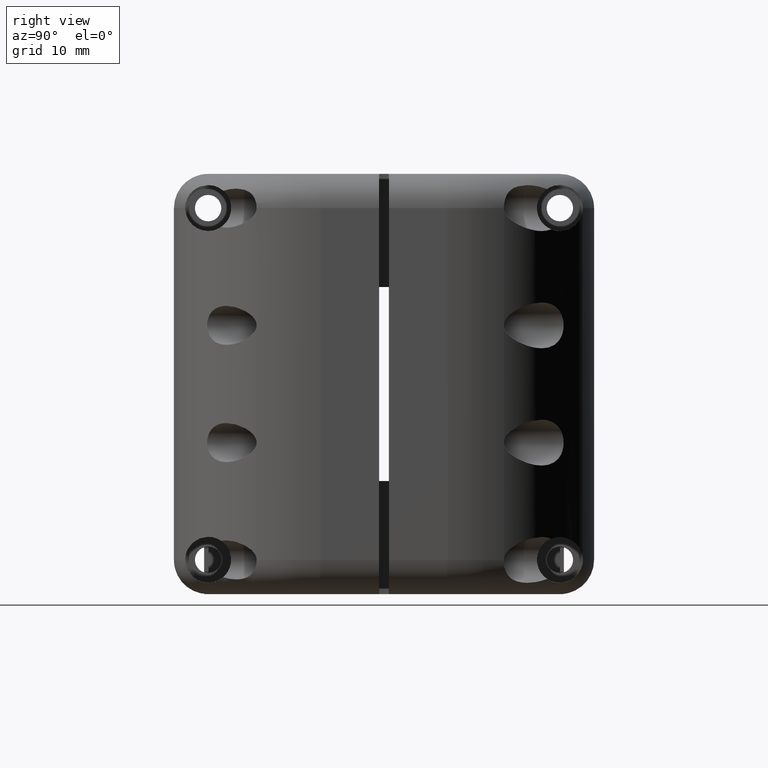
[diagram: clean part render]
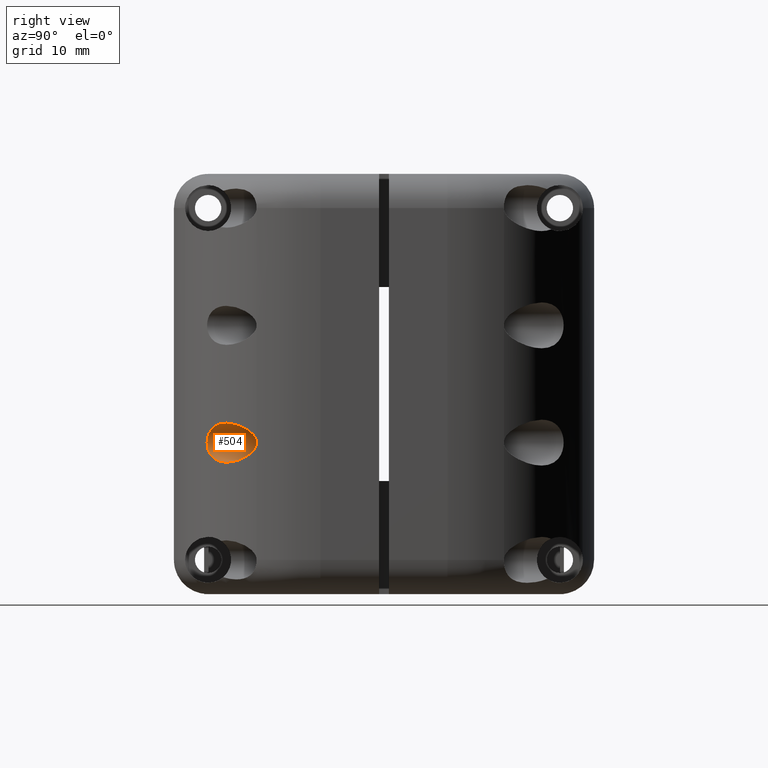
[diagram: same view with one face highlighted and labeled with its STEP entity id]
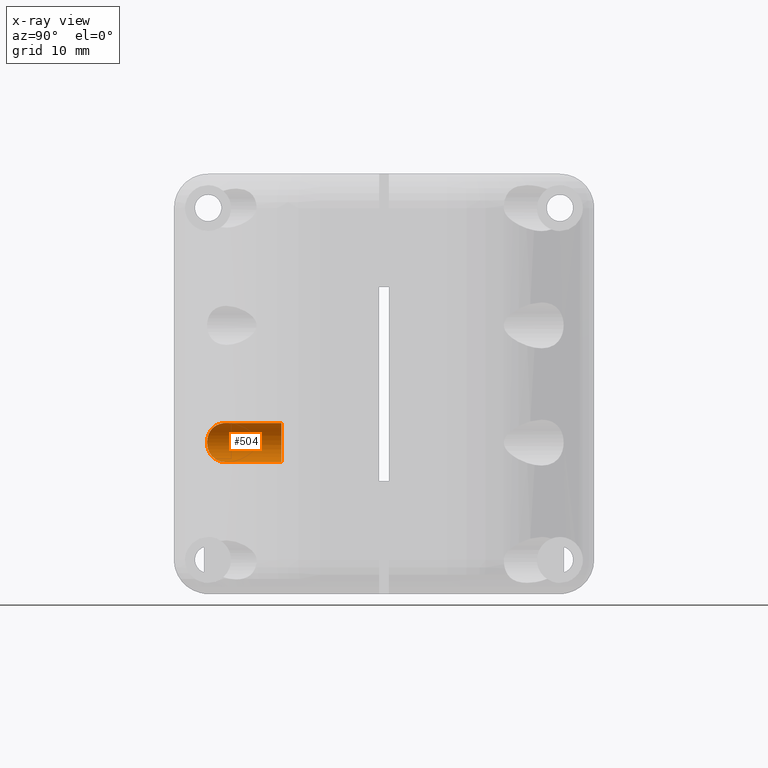
[diagram: x-ray of the same camera — body ghosted, the highlighted face saturated]
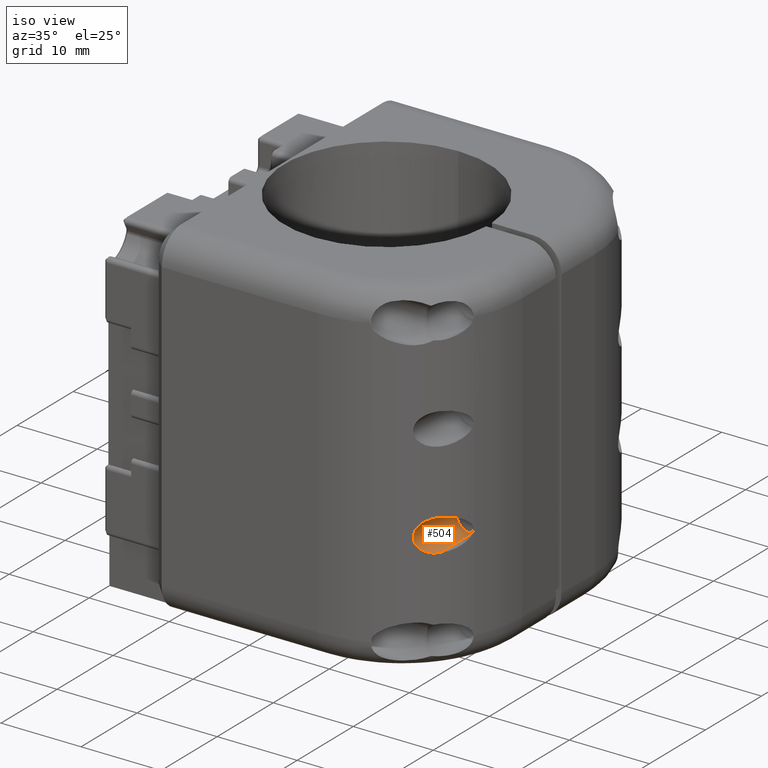
[diagram: same view with one face highlighted and labeled with its STEP entity id]
A machine part, right view. The second image highlights one B-rep face of the part: STEP entity #504.
The next image is the same camera in x-ray: the body ghosted, the highlighted face saturated — about 0% of this face is hidden behind the body in this view.
A second angle (iso view) of the same face is appended — the face is thin or edge-on in the first view.
In plain terms, the highlighted cylindrical surface (edge-blend (fillet) strip) has radius 2 mm, axis along (0, 1, 0).
Its self-contained STEP definition (entity closure, byte-faithful):
#254=CYLINDRICAL_SURFACE('',#8473,2.);
#504=ADVANCED_FACE('',(#892),#254,.F.);
#892=FACE_OUTER_BOUND('',#1312,.F.);
#1312=EDGE_LOOP('',(#2691,#2692,#2693,#2694));
#2691=ORIENTED_EDGE('',*,*,#5486,.F.);
#2692=ORIENTED_EDGE('',*,*,#5490,.F.);
#2693=ORIENTED_EDGE('',*,*,#5487,.T.);
#2694=ORIENTED_EDGE('',*,*,#5017,.T.);
#4267=B_SPLINE_CURVE_WITH_KNOTS('',3,(#11977,#11978,#11979,#11980,#11981,
#11982,#11983,#11984,#11985,#11986,#11987,#11988,#11989,#11990,#11991,#11992,
#11993,#11994,#11995,#11996,#11997),.UNSPECIFIED.,.F.,.F.,(4,1,1,1,1,1,1,
1,1,1,1,1,1,1,1,1,1,1,4),(0.,0.0761269899847815,0.128273079170118,0.188720013484414,
0.246301950433155,0.301097779144921,0.353358480565255,0.403513585772715,
0.452153345328427,0.5,0.547846654671572,0.596486414227285,0.646641519434745,
0.698902220855079,0.753698049566845,0.811279986515586,0.871726920829882,
0.923873010015219,1.),.UNSPECIFIED.);
#4640=CIRCLE('',#8227,2.);
#5017=EDGE_CURVE('',#7535,#7534,#4267,.T.);
#5486=EDGE_CURVE('',#7255,#7534,#6217,.T.);
#5487=EDGE_CURVE('',#7254,#7535,#6218,.T.);
#5490=EDGE_CURVE('',#7254,#7255,#4640,.T.);
#6217=LINE('',#13053,#6899);
#6218=LINE('',#13054,#6900);
#6899=VECTOR('',#9748,5.6306889246988);
#6900=VECTOR('',#9749,5.63068892469882);
#7254=VERTEX_POINT('',#10979);
#7255=VERTEX_POINT('',#10980);
#7534=VERTEX_POINT('',#11259);
#7535=VERTEX_POINT('',#11260);
#8227=AXIS2_PLACEMENT_3D('',#13057,#9752,#9753);
#8473=AXIS2_PLACEMENT_3D('',#13567,#10496,#10497);
#9748=DIRECTION('',(0.,-1.,0.));
#9749=DIRECTION('',(0.,-1.,0.));
#9752=DIRECTION('',(0.,1.,0.));
#9753=DIRECTION('',(0.,0.,-1.));
#10496=DIRECTION('',(0.,1.,0.));
#10497=DIRECTION('',(0.,0.,-1.));
#10979=CARTESIAN_POINT('',(91.1649964450381,-10.499992332566,-8.00000002188403));
#10980=CARTESIAN_POINT('',(91.1649964450381,-10.499992332566,-4.00000002188403));
#11259=CARTESIAN_POINT('',(91.1649958473061,-16.130681321269,-4.00000002188567));
#11260=CARTESIAN_POINT('',(91.1649958473061,-16.130681321269,-8.00000002188236));
#11977=CARTESIAN_POINT('',(91.1649954680522,-16.1306814493035,-8.00000002189654));
#11978=CARTESIAN_POINT('',(91.0402075509005,-16.2797124476108,-7.99997642499238));
#11979=CARTESIAN_POINT('',(90.8249698325959,-16.5267218200177,-7.9804231424943));
#11980=CARTESIAN_POINT('',(90.5012581487732,-16.8747118699709,-7.8949155850473));
#11981=CARTESIAN_POINT('',(90.2088216706473,-17.1718057193843,-7.76769939603921));
#11982=CARTESIAN_POINT('',(89.9199696395625,-17.4490672482924,-7.57803384509887));
#11983=CARTESIAN_POINT('',(89.6636499400971,-17.6830338823065,-7.33710320715974));
#11984=CARTESIAN_POINT('',(89.4500003801282,-17.8698615670054,-7.04971926170359));
#11985=CARTESIAN_POINT('',(89.288634903403,-18.0062997373945,-6.72363190637063));
#11986=CARTESIAN_POINT('',(89.1879003215265,-18.0894987931775,-6.36930512408147));
#11987=CARTESIAN_POINT('',(89.1536714024166,-18.1174139270488,-6.00000002188402));
#11988=CARTESIAN_POINT('',(89.1879003215265,-18.0894987931775,-5.63069491968657));
#11989=CARTESIAN_POINT('',(89.288634903403,-18.0062997373945,-5.2763681373974));
#11990=CARTESIAN_POINT('',(89.4500003801282,-17.8698615670054,-4.95028078206444));
#11991=CARTESIAN_POINT('',(89.6636499400971,-17.6830338823065,-4.66289683660828));
#11992=CARTESIAN_POINT('',(89.9199696395625,-17.4490672482924,-4.42196619866917));
#11993=CARTESIAN_POINT('',(90.2088216706472,-17.1718057193844,-4.23230064772881));
#11994=CARTESIAN_POINT('',(90.5012581487732,-16.8747118699709,-4.10508445872071));
#11995=CARTESIAN_POINT('',(90.8249698325958,-16.5267218200178,-4.01957690127374));
#11996=CARTESIAN_POINT('',(91.0402075509005,-16.2797124476108,-4.00002361877563));
#11997=CARTESIAN_POINT('',(91.1649954680522,-16.1306814493035,-4.00000002187149));
#13053=CARTESIAN_POINT('',(91.1649964450381,-10.499992332566,-4.00000002188403));
#13054=CARTESIAN_POINT('',(91.1649964450381,-10.499992332566,-8.00000002188403));
#13057=CARTESIAN_POINT('',(91.1649964450381,-10.499992332566,-6.00000002188403));
#13567=CARTESIAN_POINT('',(91.1649964450381,-10.499992332566,-6.00000002188403));